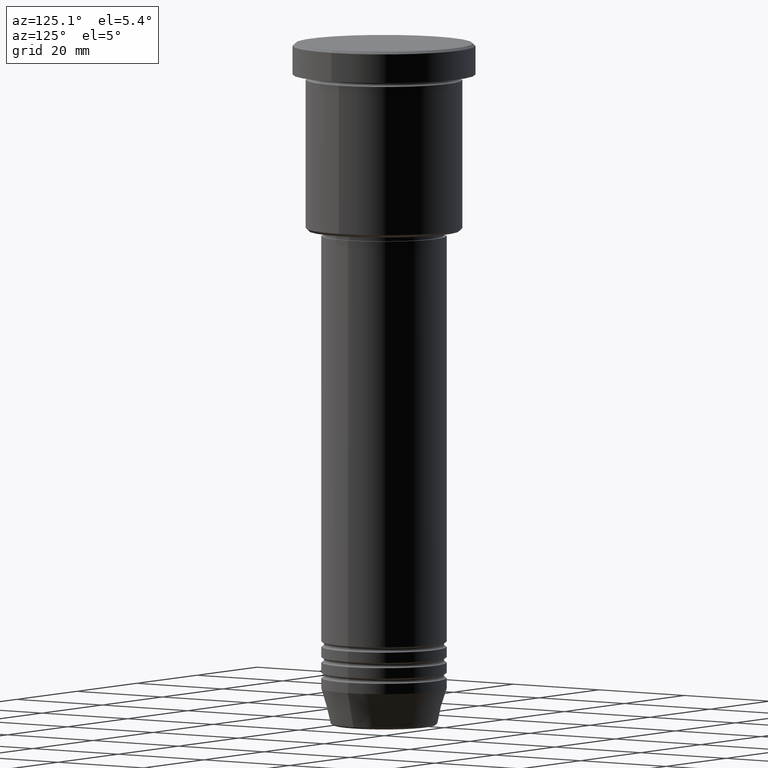
[diagram: clean part render]
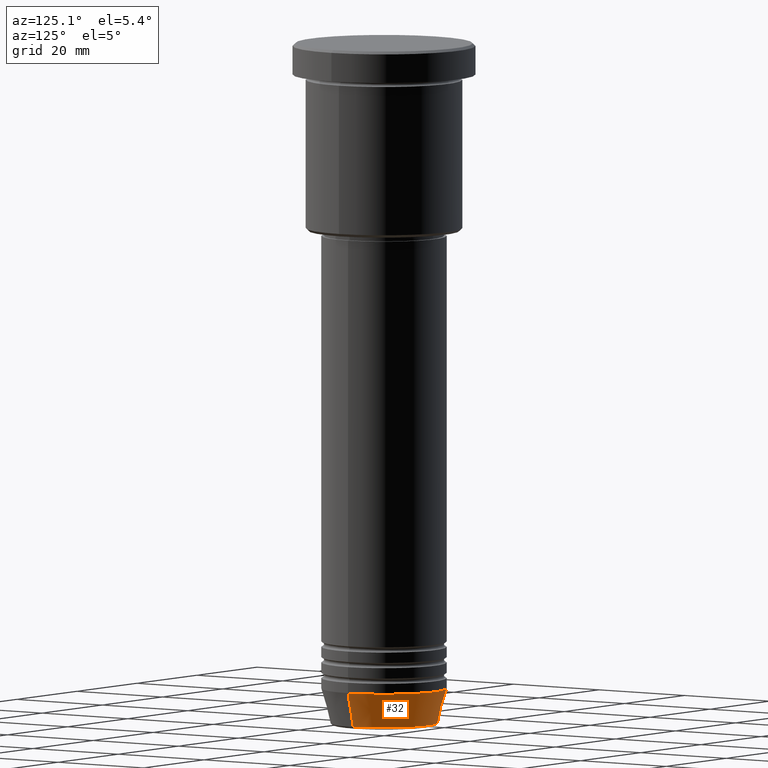
[diagram: same view with one face highlighted and labeled with its STEP entity id]
A machine part, auxiliary view. The second image highlights one B-rep face of the part: STEP entity #32.
In plain terms, the highlighted conical surface has half-angle 15 deg.
Its self-contained STEP definition (entity closure, byte-faithful):
#20 = CARTESIAN_POINT ( 'NONE',  ( 0.000000000000000000, 0.000000000000000000, -124.0000000000000000 ) ) ;
#32 = ADVANCED_FACE ( 'NONE', ( #554 ), #993, .T. ) ;
#134 = ORIENTED_EDGE ( 'NONE', *, *, #564, .T. ) ;
#171 = VERTEX_POINT ( 'NONE', #580 ) ;
#178 = EDGE_LOOP ( 'NONE', ( #1042, #134, #454, #1096 ) ) ;
#188 = CARTESIAN_POINT ( 'NONE',  ( -12.00000000000000000, 1.469576158976823947E-15, -124.0000000000000000 ) ) ;
#221 = DIRECTION ( 'NONE',  ( 1.000000000000000000, 0.000000000000000000, 0.000000000000000000 ) ) ;
#253 = VERTEX_POINT ( 'NONE', #939 ) ;
#270 = EDGE_CURVE ( 'NONE', #171, #253, #313, .T. ) ;
#275 = VECTOR ( 'NONE', #848, 1000.000000000000000 ) ;
#292 = DIRECTION ( 'NONE',  ( -0.000000000000000000, -0.000000000000000000, 1.000000000000000000 ) ) ;
#294 = VECTOR ( 'NONE', #1043, 1000.000000000000000 ) ;
#301 = DIRECTION ( 'NONE',  ( 1.000000000000000000, 0.000000000000000000, 0.000000000000000000 ) ) ;
#304 = CARTESIAN_POINT ( 'NONE',  ( 12.00000000000000000, 0.000000000000000000, -124.0000000000000000 ) ) ;
#313 = CIRCLE ( 'NONE', #1151, 10.22365507213718949 ) ;
#402 = DIRECTION ( 'NONE',  ( -0.000000000000000000, -0.000000000000000000, 1.000000000000000000 ) ) ;
#454 = ORIENTED_EDGE ( 'NONE', *, *, #920, .F. ) ;
#554 = FACE_OUTER_BOUND ( 'NONE', #178, .T. ) ;
#557 = CARTESIAN_POINT ( 'NONE',  ( -12.00000000000000000, 1.469576158976823947E-15, -124.0000000000000000 ) ) ;
#564 = EDGE_CURVE ( 'NONE', #253, #967, #825, .T. ) ;
#580 = CARTESIAN_POINT ( 'NONE',  ( 10.22365507213718949, 0.000000000000000000, -130.6294095225512422 ) ) ;
#587 = CIRCLE ( 'NONE', #626, 12.00000000000000000 ) ;
#596 = LINE ( 'NONE', #1157, #294 ) ;
#610 = AXIS2_PLACEMENT_3D ( 'NONE', #640, #1006, #301 ) ;
#626 = AXIS2_PLACEMENT_3D ( 'NONE', #20, #292, #749 ) ;
#640 = CARTESIAN_POINT ( 'NONE',  ( 0.000000000000000000, 0.000000000000000000, -124.0000000000000000 ) ) ;
#749 = DIRECTION ( 'NONE',  ( 1.000000000000000000, 0.000000000000000000, 0.000000000000000000 ) ) ;
#825 = LINE ( 'NONE', #188, #275 ) ;
#845 = CARTESIAN_POINT ( 'NONE',  ( 0.000000000000000000, 0.000000000000000000, -130.6294095225512422 ) ) ;
#848 = DIRECTION ( 'NONE',  ( -0.2588190451025213501, 3.169619151431772337E-17, 0.9659258262890680902 ) ) ;
#920 = EDGE_CURVE ( 'NONE', #958, #967, #587, .T. ) ;
#939 = CARTESIAN_POINT ( 'NONE',  ( -10.22365507213718949, 1.360806402472382744E-15, -130.6294095225512422 ) ) ;
#958 = VERTEX_POINT ( 'NONE', #304 ) ;
#967 = VERTEX_POINT ( 'NONE', #557 ) ;
#993 = CONICAL_SURFACE ( 'NONE', #610, 12.00000000000000000, 0.2617993877991500740 ) ;
#1006 = DIRECTION ( 'NONE',  ( -0.000000000000000000, -0.000000000000000000, 1.000000000000000000 ) ) ;
#1042 = ORIENTED_EDGE ( 'NONE', *, *, #270, .T. ) ;
#1043 = DIRECTION ( 'NONE',  ( 0.2588190451025213501, 0.000000000000000000, 0.9659258262890680902 ) ) ;
#1082 = EDGE_CURVE ( 'NONE', #171, #958, #596, .T. ) ;
#1096 = ORIENTED_EDGE ( 'NONE', *, *, #1082, .F. ) ;
#1151 = AXIS2_PLACEMENT_3D ( 'NONE', #845, #402, #221 ) ;
#1157 = CARTESIAN_POINT ( 'NONE',  ( 12.00000000000000000, 0.000000000000000000, -124.0000000000000000 ) ) ;